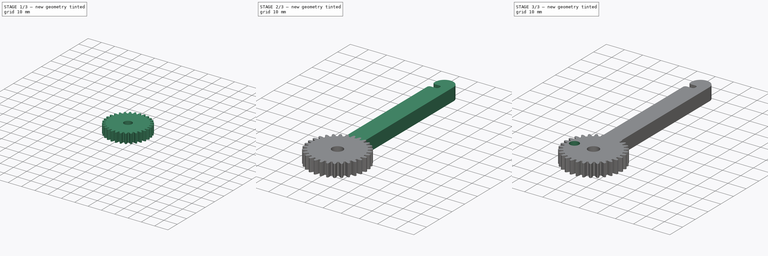
[diagram: build sequence overview — one tinted view per stage of 3, left to right]
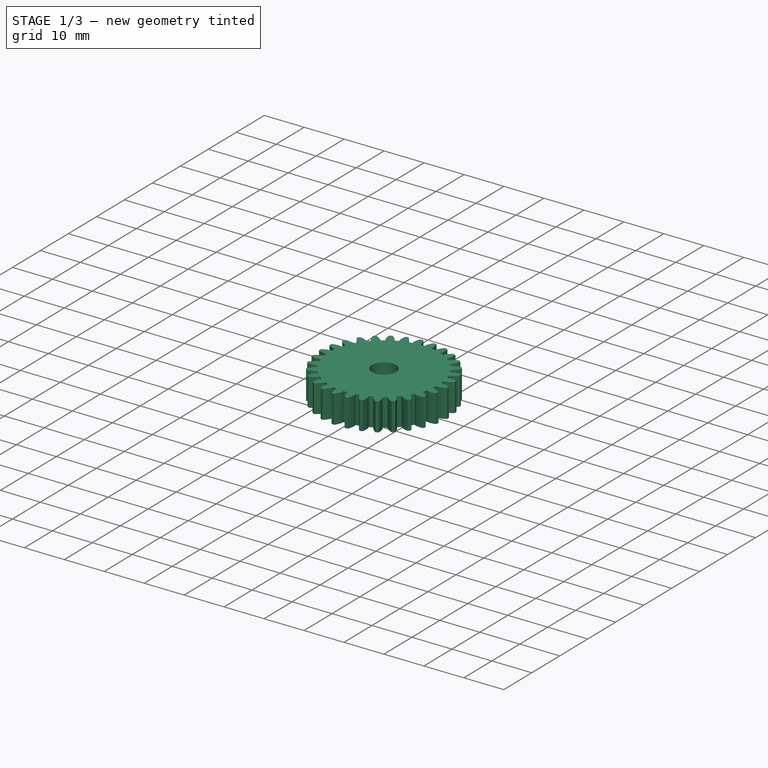
[diagram: stage 1 of 3 — iso view after this stage's code; geometry added in this stage tinted green]
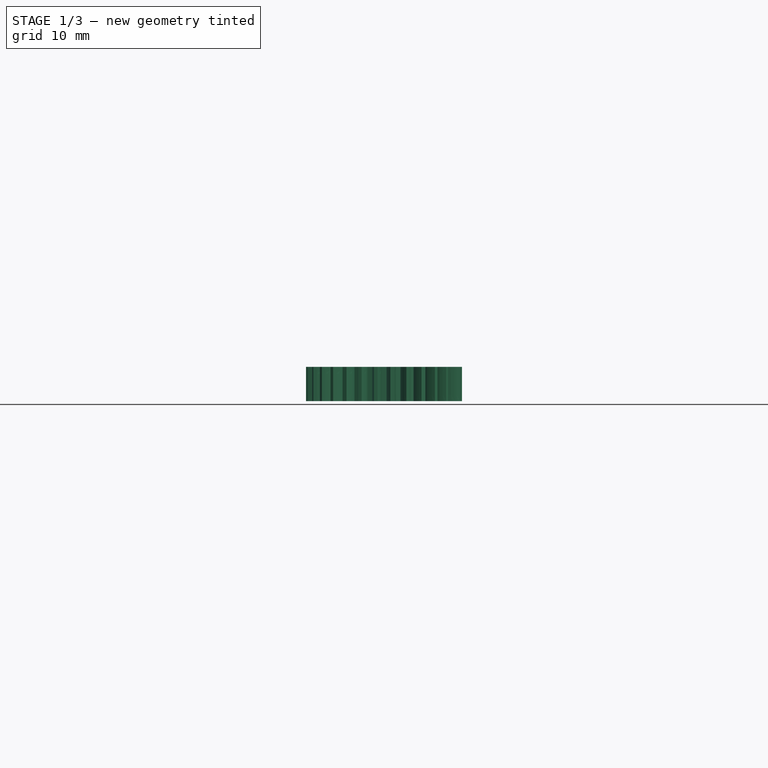
[diagram: stage 1 of 3 — front view after this stage's code; geometry added in this stage tinted green]
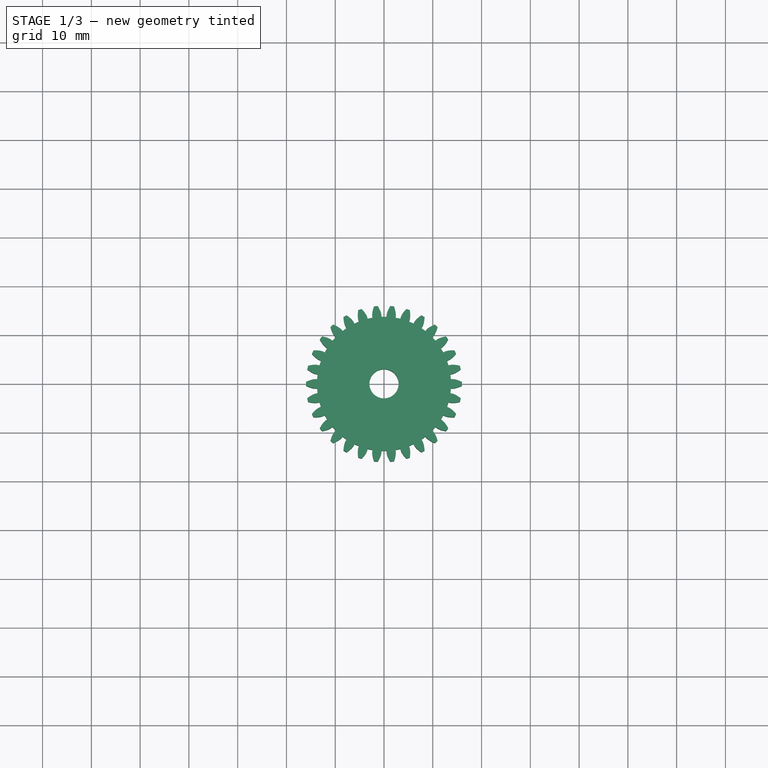
[diagram: stage 1 of 3 — top view after this stage's code; geometry added in this stage tinted green]
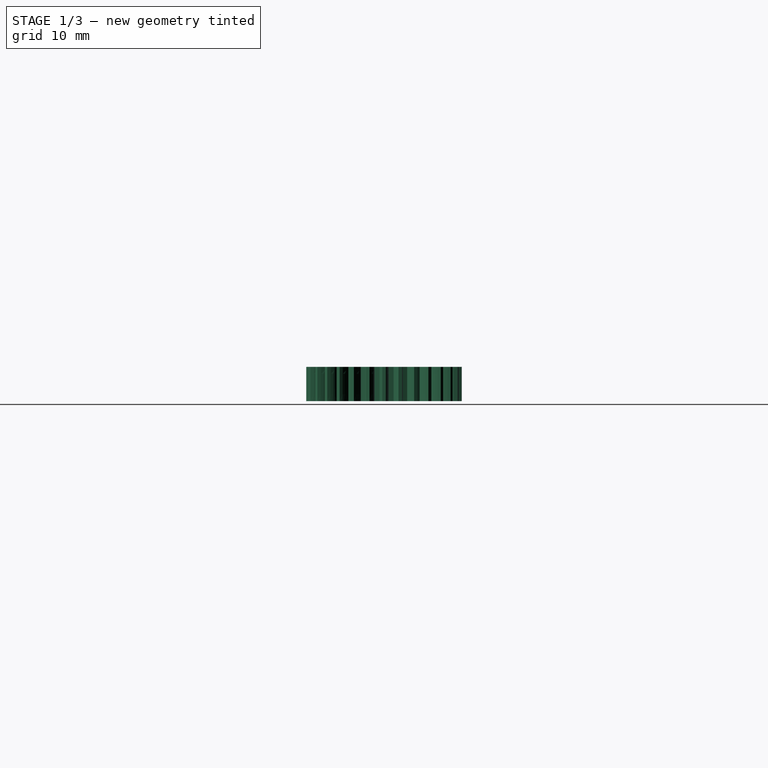
[diagram: stage 1 of 3 — right view after this stage's code; geometry added in this stage tinted green]
FCSTD DOCUMENT  (FreeCAD 0.19R24291 (Git))
Label: Gear02
License: All rights reserved
LicenseURL: http://en.wikipedia.org/wiki/All_rights_reserved
objects: Sketcher::SketchObject×4, PartDesign::Pocket×3, PartDesign::CoordinateSystem×1, PartDesign::FeaturePython×1, PartDesign::Pad×1, PartDesign::Body×1, App::Part×1
note: 15 computed .brp shape members not serialized (recipe doc carries the construction recipe); baked Part::Feature solids carry a one-line shape summary decoded from their .brp
EXTERNAL_REF file=data.FCStd obj=Spreadsheet

FEATURE [PartDesign::CoordinateSystem] LCS_0
  AttacherType = Attacher::AttachEngine3D
  MapMode = 2
  Support = -> [X_Axis]
FEATURE [PartDesign::FeaturePython] involutegear  # WARN: FeaturePython — macro-defined, semantics opaque (R4)
  AttacherType = Attacher::AttachEngine3D
  backlash = 0
  beta = 0
  clearance = 0.25
  da = 32
  df = 27.5
  double_helix = false
  dw = 30
  head = 0
  height = 7
  module = 1
  numpoints = 6
  pressure_angle = 20
  properties_from_tool = false
  reversed_backlash = false
  shift = 0
  simple = false
  teeth = 30
  transverse_pitch = 3.14159
  undercut = false
  version = 0.0.3
  expr: teeth = data#<<data>>.Gear02Teeth
  expr: module = data#<<data>>.GearModule
  expr: height = data#<<data>>.Gear02Thickness
FEATURE [Sketcher::SketchObject] Sketch
  FullyConstrained = true
  MapMode = 5
  Support = -> [XY_Plane001]
  expr: Constraints[1] = data#<<data>>.Gear02ShaftHole
  sketch-geometry (1):
    g0: Circle CenterX=0 CenterY=0 CenterZ=0 NormalX=0 NormalY=0 NormalZ=1 AngleXU=0 Radius=3
  constraints (2):
    c: Coincident(g0,g-1)
    c: Diameter(g0) = 6
FEATURE [PartDesign::Pocket] Pocket
  BaseFeature = -> involutegear
  Length = 5
  Length2 = 100
  Profile = -> Sketch
  Reversed = true
  Type = 1
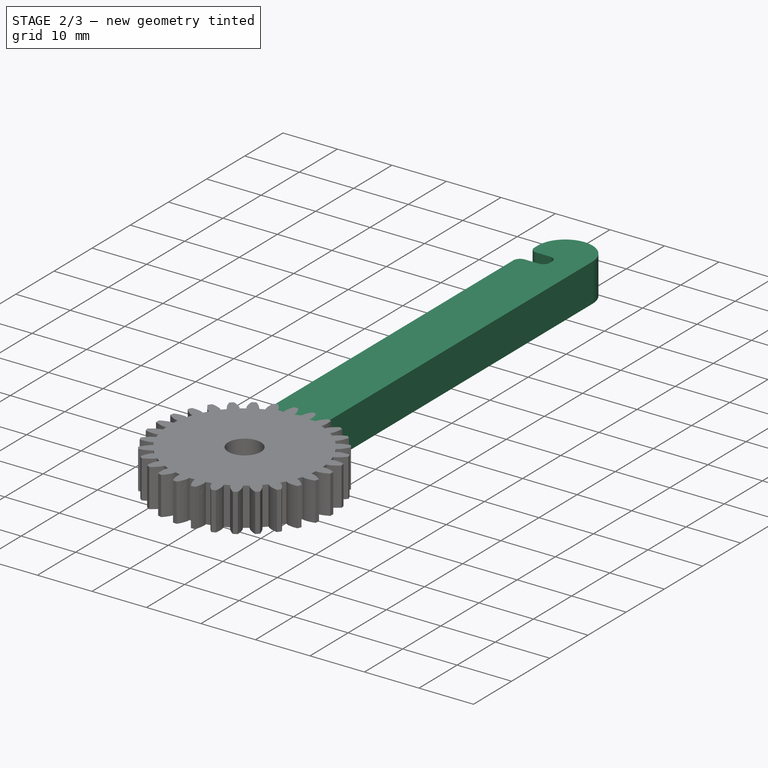
[diagram: stage 2 of 3 — iso view after this stage's code; geometry added in this stage tinted green]
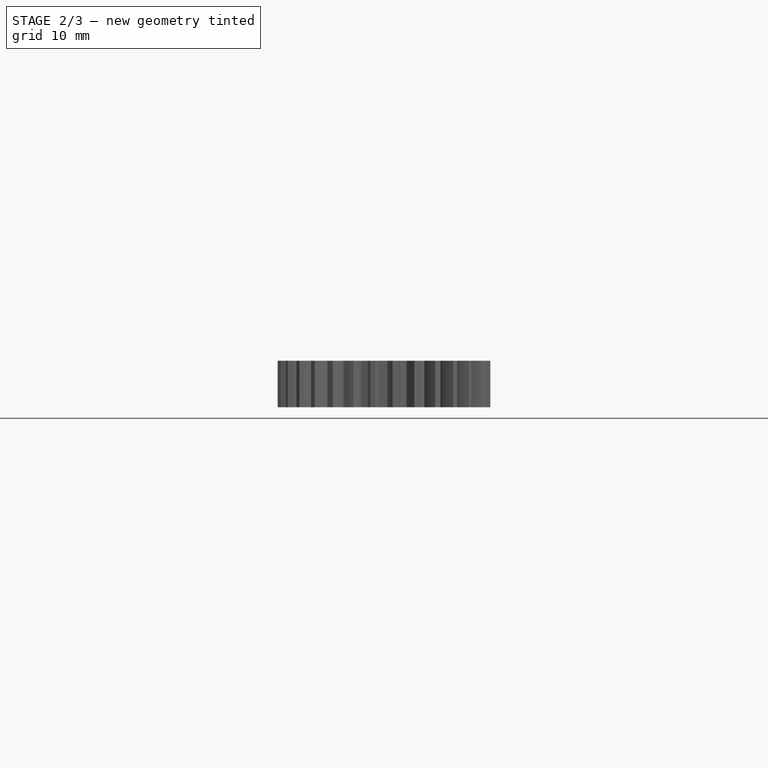
[diagram: stage 2 of 3 — front view after this stage's code; geometry added in this stage tinted green]
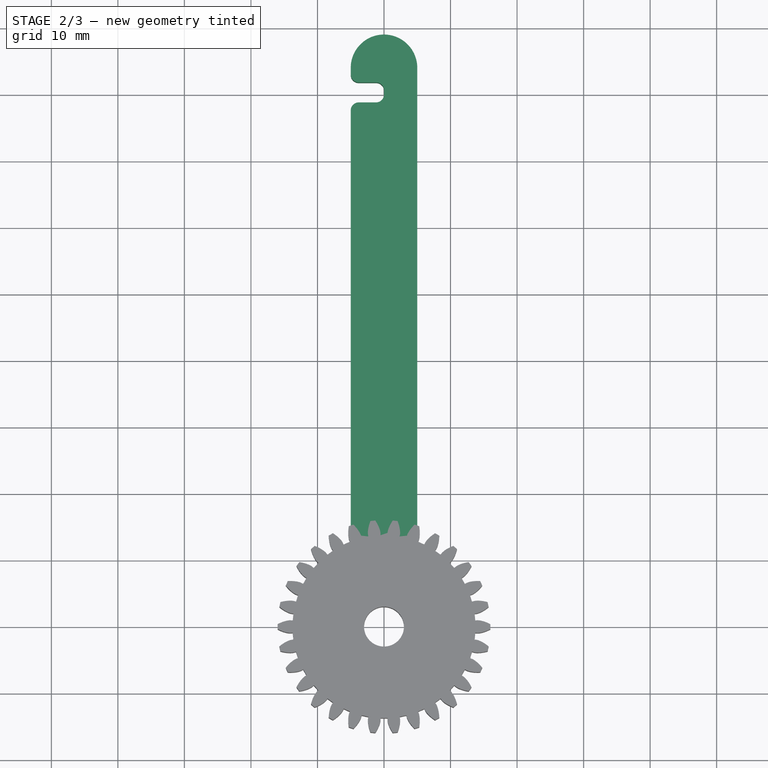
[diagram: stage 2 of 3 — top view after this stage's code; geometry added in this stage tinted green]
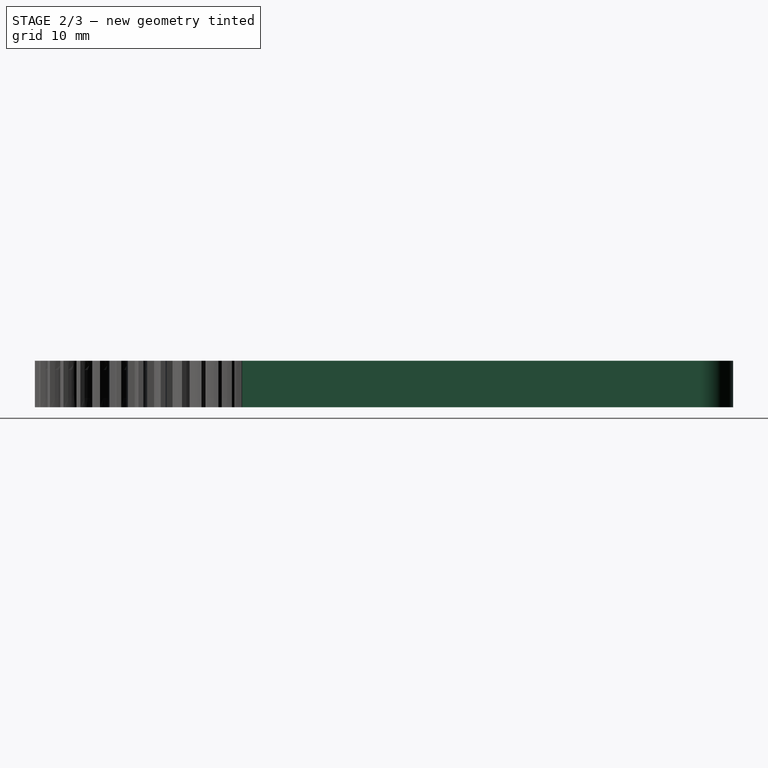
[diagram: stage 2 of 3 — right view after this stage's code; geometry added in this stage tinted green]
FEATURE [Sketcher::SketchObject] Sketch001
  FullyConstrained = true
  MapMode = 5
  Support = -> [XY_Plane001]
  expr: Constraints[32] = data#<<data>>.Gear02NotchOffset
  expr: Constraints[27] = data#<<data>>.Gear02NotchCornerRadius
  expr: Constraints[30] = data#<<data>>.Gear02LeverWidth
  expr: Constraints[10] = data#<<data>>.Gear02LeverLength
  expr: Constraints[9] = data#<<data>>.Gear02LeverOffset
  sketch-geometry (12):
    g0: LineSegment StartX=5 StartY=84 StartZ=0 EndX=5 EndY=4 EndZ=0
    g1: LineSegment StartX=5 StartY=4 StartZ=0 EndX=-5 EndY=4 EndZ=0
    g2: LineSegment StartX=-5 StartY=4 StartZ=0 EndX=-5 EndY=77.6 EndZ=0
    g3: ArcOfCircle CenterX=0 CenterY=84 CenterZ=0 NormalX=0 NormalY=0 NormalZ=1 AngleXU=0 Radius=5 StartAngle=4.11372e-06 EndAngle=3.14159
    g4: LineSegment StartX=-3.8 StartY=81.8 StartZ=0 EndX=-1.2 EndY=81.8 EndZ=0
    g5: LineSegment StartX=0 StartY=80.6 StartZ=0 EndX=0 EndY=80 EndZ=0
    g6: LineSegment StartX=-1.2 StartY=78.8 StartZ=0 EndX=-3.8 EndY=78.8 EndZ=0
    g7: LineSegment StartX=-5 StartY=83 StartZ=0 EndX=-5 EndY=84 EndZ=0
    g8: ArcOfCircle CenterX=-3.8 CenterY=83 CenterZ=0 NormalX=0 NormalY=0 NormalZ=1 AngleXU=0 Radius=1.2 StartAngle=3.14159 EndAngle=4.71239
    g9: ArcOfCircle CenterX=-1.2 CenterY=80.6 CenterZ=0 NormalX=0 NormalY=0 NormalZ=1 AngleXU=0 Radius=1.2 StartAngle=3.8e-15 EndAngle=1.5708
    g10: ArcOfCircle CenterX=-1.2 CenterY=80 CenterZ=0 NormalX=0 NormalY=0 NormalZ=1 AngleXU=0 Radius=1.2 StartAngle=4.71239 EndAngle=6.28319
    g11: ArcOfCircle CenterX=-3.8 CenterY=77.6 CenterZ=0 NormalX=0 NormalY=0 NormalZ=1 AngleXU=0 Radius=1.2 StartAngle=1.5708 EndAngle=3.14159
  constraints (33):
    c: Coincident(g0,g1)
    c: Coincident(g1,g2)
    c: Horizontal(g1)
    c: Vertical(g0)
    c: Vertical(g2)
    c: PointOnObject(g3,g-2)
    c: Coincident(g3,g7)
    c: Coincident(g3,g0)
    c: Horizontal(g7,g3)
    c: DistanceY(g-1,g0) = 4
    c: DistanceY(g0,g0) = 80
    c: Radius(g3) = 5
    c: Horizontal(g4)
    c: Vertical(g5)
    c: Horizontal(g6)
    c: Tangent(g2,g7)
    c: Tangent(g7,g8) = 1.5708
    c: Tangent(g4,g8) = -1.5708
    c: Tangent(g4,g9) = 1.5708
    c: Tangent(g5,g9) = 1.5708
    c: Tangent(g5,g10) = 1.5708
    c: Tangent(g6,g10) = 1.5708
    c: Tangent(g6,g11) = -1.5708
    c: Tangent(g2,g11) = 1.5708
    c: Equal(g8,g9)
    c: Equal(g9,g10)
    c: Equal(g10,g11)
    c: Radius(g8) = 1.2
    c: DistanceY(g6,g4) = 3
    c: PointOnObject(g5,g-2)
    c: DistanceX(g3,g0) = 10
    c: DistanceY(g-1,g4) = 81.8  'channel_start'
    c: DistanceY(g7,g3) = 1
FEATURE [PartDesign::Pad] Pad
  BaseFeature = -> Pocket
  Direction = (1,1,1)
  Length = 7
  Length2 = 100
  Profile = -> Sketch001
  Type = 0
  expr: Length = data#<<data>>.Gear02Thickness
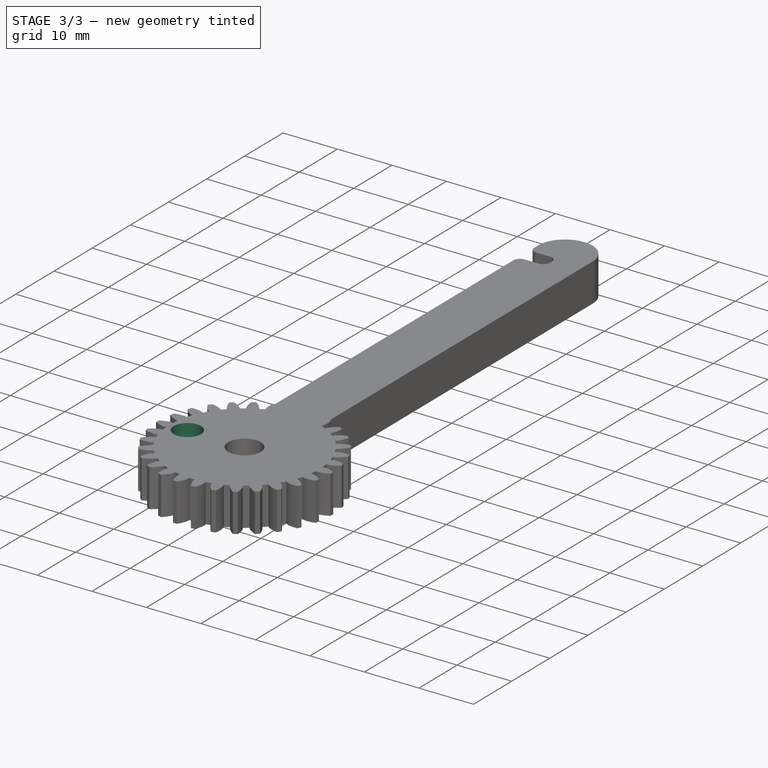
[diagram: stage 3 of 3 — iso view after this stage's code; geometry added in this stage tinted green]
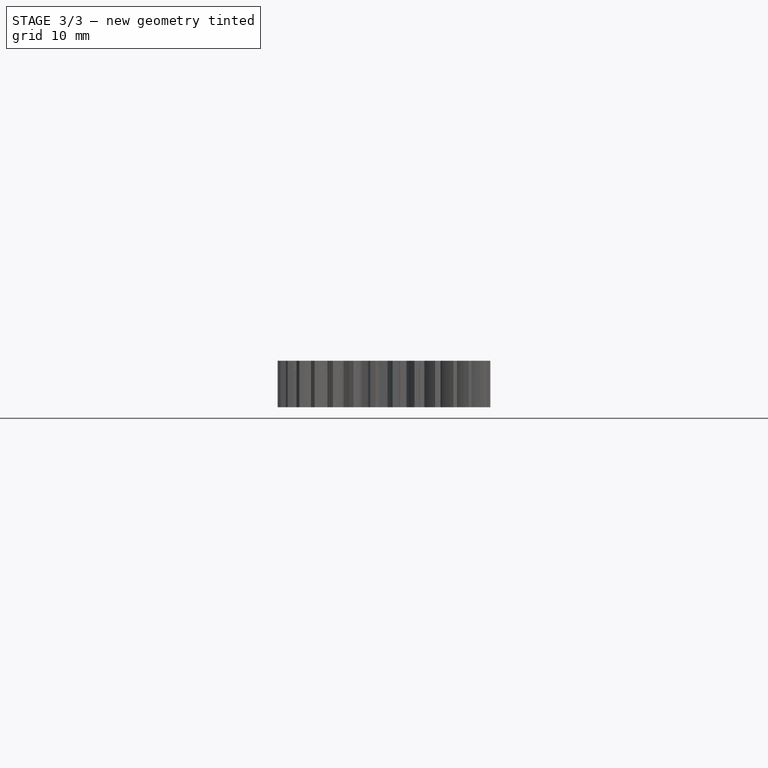
[diagram: stage 3 of 3 — front view after this stage's code; geometry added in this stage tinted green]
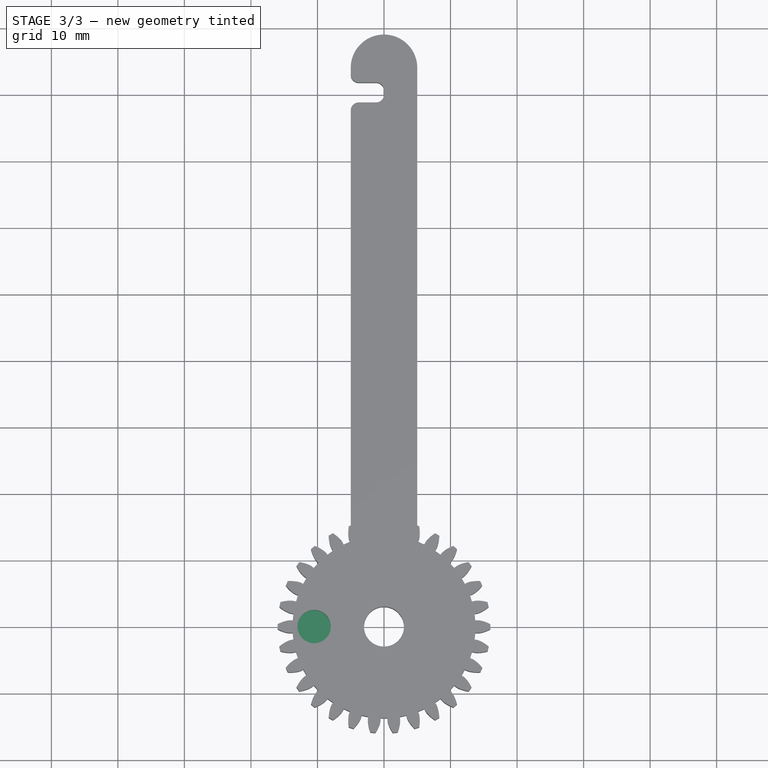
[diagram: stage 3 of 3 — top view after this stage's code; geometry added in this stage tinted green]
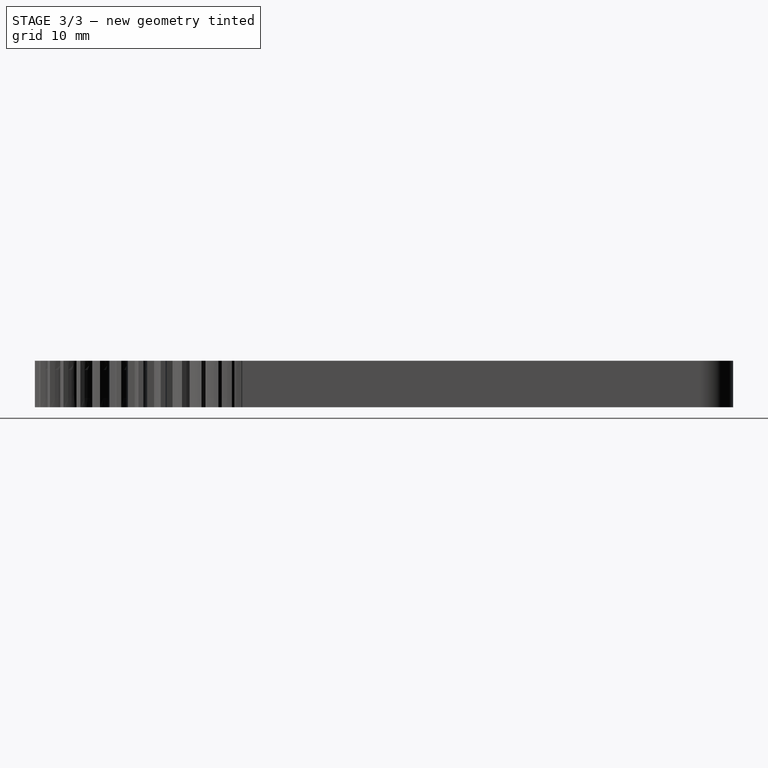
[diagram: stage 3 of 3 — right view after this stage's code; geometry added in this stage tinted green]
FEATURE [Sketcher::SketchObject] Sketch002
  AttachmentOffset = pos=(0,0,7) rot=(0,0,1;0rad)
  FullyConstrained = true
  MapMode = 5
  Placement = pos=(0,0,7) rot=(0,0,1;0rad)
  Support = -> [XY_Plane001]
  expr: Constraints[5] = data#<<data>>.MagnetDistanceOnGear
  expr: Constraints[0] = data#<<data>>.MagnetDiameter
  expr: .AttachmentOffset.Base.z = data#<<data>>.Gear02Thickness
  expr: Constraints[7] = data#<<data>>.MagnetAngle
  sketch-geometry (3):
    g0: Circle CenterX=-10.5 CenterY=1.5e-15 CenterZ=0 NormalX=0 NormalY=0 NormalZ=1 AngleXU=0 Radius=2.5
    g1: LineSegment StartX=0 StartY=0 StartZ=0 EndX=-10.5 EndY=1.5e-15 EndZ=0
    g2: LineSegment StartX=0 StartY=0 StartZ=0 EndX=0 EndY=-10.5 EndZ=0
  constraints (8):
    c: Diameter(g0) = 5
    c: Coincident(g1,g-1)
    c: Coincident(g2,g-1)
    c: PointOnObject(g2,g-2)
    c: Equal(g1,g2)
    c: Distance(g1) = 10.5
    c: Coincident(g0,g1)
    c: Angle(g-2,g1) = 1.5708
FEATURE [PartDesign::Pocket] Pocket001
  BaseFeature = -> Pad
  Length = 3
  Length2 = 100
  Profile = -> Sketch002
  Type = 0
  expr: Length = data#<<data>>.MagnetThickness
FEATURE [Sketcher::SketchObject] Sketch003
  AttachmentOffset = pos=(0,0,-81.8) rot=(0,0,1;0rad)
  FullyConstrained = true
  MapMode = 5
  Placement = pos=(0,81.8,1.82e-14) rot=(1,0,0;1.5708rad)
  Support = -> [XZ_Plane001]
  expr: .AttachmentOffset.Base.z = -data#<<data>>.Gear02SlotStart
  expr: Constraints[3] = data#<<data>>.Gear02SlotDiameter
  expr: Constraints[4] = data#<<data>>.Gear02LeverWidth / 2
  expr: Constraints[2] = data#<<data>>.Gear02Thickness / 2
  sketch-geometry (2):
    g0: ArcOfCircle CenterX=-5 CenterY=3.5 CenterZ=0 NormalX=0 NormalY=0 NormalZ=1 AngleXU=0 Radius=1.16667 StartAngle=4.71239 EndAngle=7.85398
    g1: LineSegment StartX=-5 StartY=4.66667 StartZ=0 EndX=-5 EndY=2.33333 EndZ=0
  constraints (7):
    c: Vertical(g0,g0)
    c: Vertical(g0,g0)
    c: DistanceY(g-1,g0) = 3.5
    c: Diameter(g0) = 2.33333
    c: DistanceX(g1,g-1) = 5
    c: Coincident(g1,g0)
    c: Coincident(g1,g0)
FEATURE [PartDesign::Pocket] Pocket002
  BaseFeature = -> Pocket001
  Length = 11
  Length2 = 100
  Profile = -> Sketch003
  Type = 1
FEATURE [PartDesign::Body] Body  label="Body_gear02"
  Group = -> [involutegear,Sketch,Pocket,Sketch001,Pad,Sketch002,Pocket001,Sketch003,Pocket002]
  Origin = -> Origin001
  Tip = -> Pocket002
FEATURE [App::Part] Part_gear02
  Group = -> [LCS_0,Body]
  Origin = -> Origin
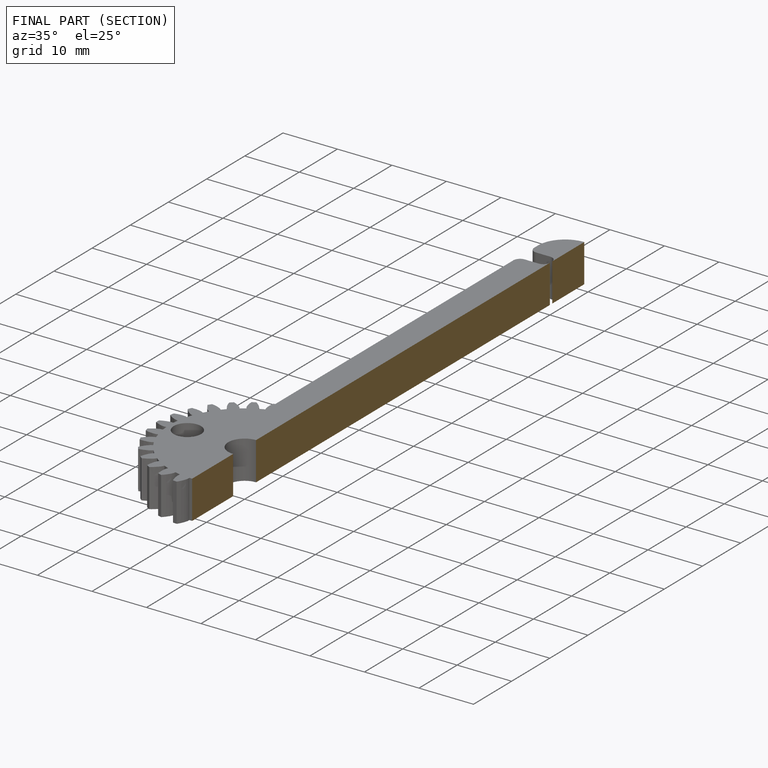
[diagram: finished part — half-section view (interior)]
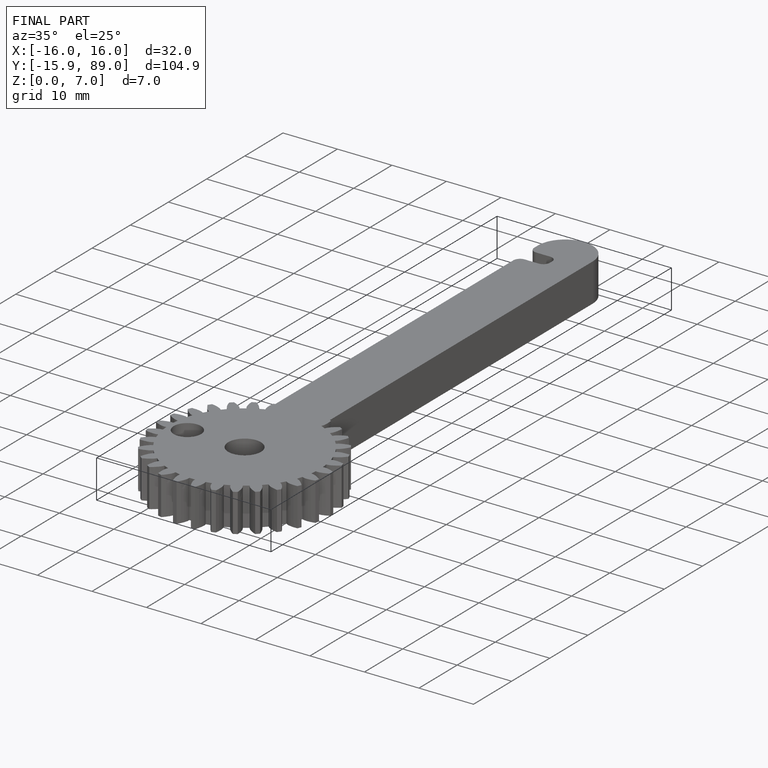
[diagram: finished part — iso view with bounding-box wireframe]
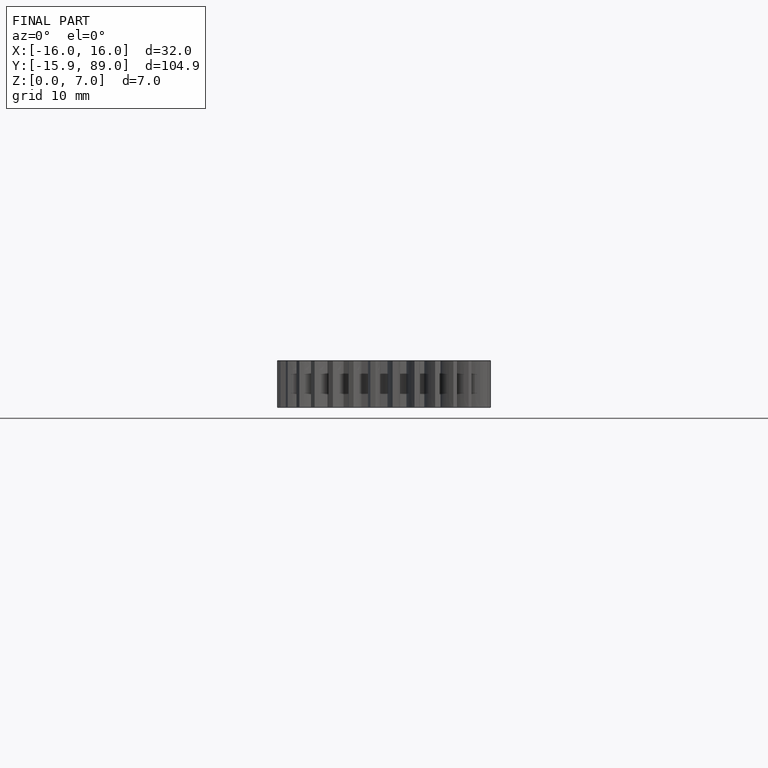
[diagram: finished part — front view with bounding-box wireframe]
